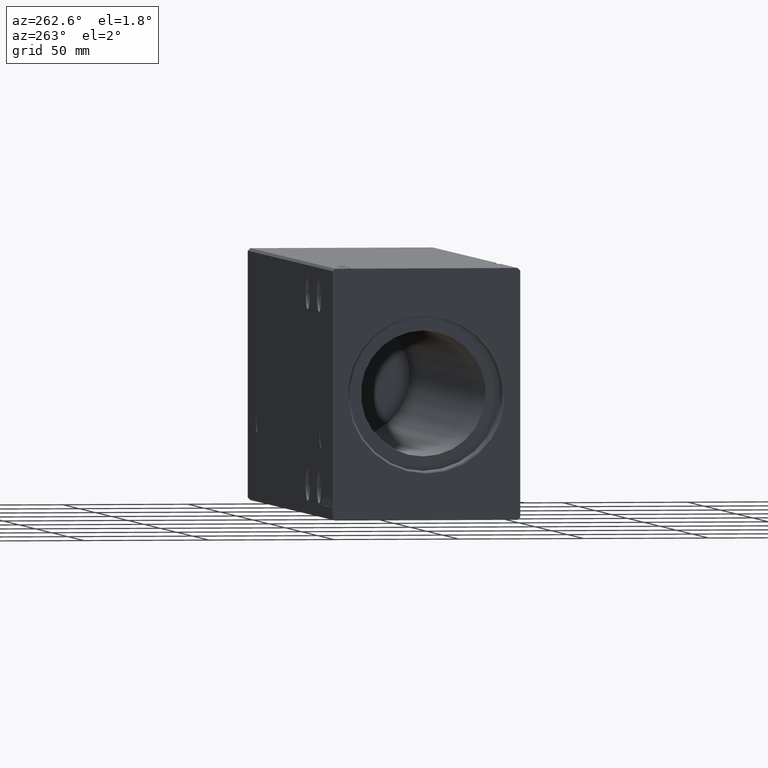
[diagram: clean part render]
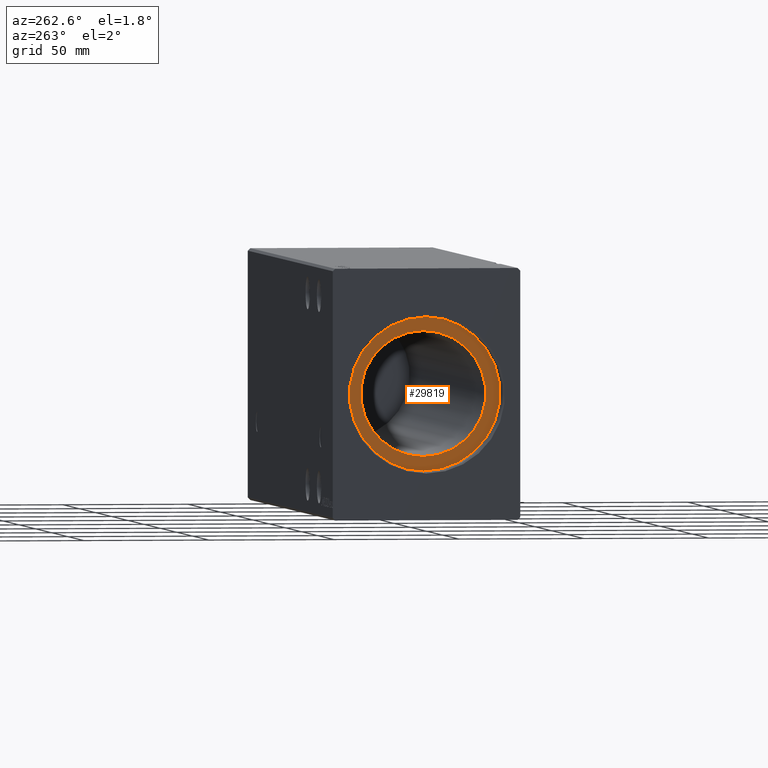
[diagram: same view with one face highlighted and labeled with its STEP entity id]
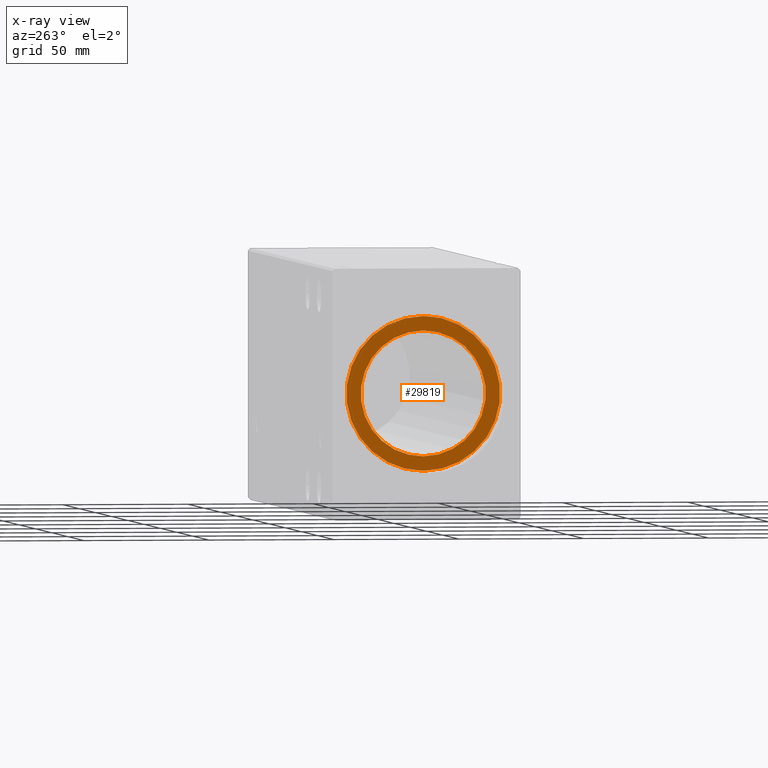
[diagram: x-ray of the same camera — body ghosted, the highlighted face saturated]
A machine part, auxiliary view. The second image highlights one B-rep face of the part: STEP entity #29819.
The next image is the same camera in x-ray: the body ghosted, the highlighted face saturated — about 0% of this face is hidden behind the body in this view.
In plain terms, the highlighted planar face has unit normal (-1, 0, 0).
Its self-contained STEP definition (entity closure, byte-faithful):
#1097 = DIRECTION ( 'NONE',  ( -1.000000000000000000, 0.000000000000000000, 0.000000000000000000 ) ) ;
#1128 = EDGE_CURVE ( 'NONE', #8531, #28750, #25035, .T. ) ;
#1332 = CIRCLE ( 'NONE', #12202, 25.00000000000000000 ) ;
#1395 = ORIENTED_EDGE ( 'NONE', *, *, #30951, .T. ) ;
#3471 = EDGE_CURVE ( 'NONE', #28750, #8531, #1332, .T. ) ;
#4555 = ORIENTED_EDGE ( 'NONE', *, *, #1128, .F. ) ;
#6062 = CARTESIAN_POINT ( 'NONE',  ( 10.00000000000000000, 3.765788907378111328E-15, -30.75000000000000355 ) ) ;
#7040 = CIRCLE ( 'NONE', #35502, 30.75000000000000355 ) ;
#7109 = CARTESIAN_POINT ( 'NONE',  ( 10.00000000000000000, 0.000000000000000000, 0.000000000000000000 ) ) ;
#7868 = CIRCLE ( 'NONE', #24142, 30.75000000000000355 ) ;
#8531 = VERTEX_POINT ( 'NONE', #35572 ) ;
#8713 = DIRECTION ( 'NONE',  ( 0.000000000000000000, 0.000000000000000000, 1.000000000000000000 ) ) ;
#10462 = EDGE_LOOP ( 'NONE', ( #22302, #4555 ) ) ;
#10553 = VERTEX_POINT ( 'NONE', #36429 ) ;
#12202 = AXIS2_PLACEMENT_3D ( 'NONE', #19804, #1097, #20420 ) ;
#14294 = EDGE_CURVE ( 'NONE', #10553, #16656, #7040, .T. ) ;
#16168 = CARTESIAN_POINT ( 'NONE',  ( 10.00000000000000888, 0.000000000000000000, 0.000000000000000000 ) ) ;
#16656 = VERTEX_POINT ( 'NONE', #6062 ) ;
#17373 = EDGE_LOOP ( 'NONE', ( #23197, #1395 ) ) ;
#18270 = AXIS2_PLACEMENT_3D ( 'NONE', #16168, #25911, #35490 ) ;
#18276 = CARTESIAN_POINT ( 'NONE',  ( 10.00000000000000000, 0.000000000000000000, 0.000000000000000000 ) ) ;
#19804 = CARTESIAN_POINT ( 'NONE',  ( 10.00000000000000888, 0.000000000000000000, 0.000000000000000000 ) ) ;
#20065 = DIRECTION ( 'NONE',  ( 0.000000000000000000, 0.000000000000000000, 1.000000000000000000 ) ) ;
#20420 = DIRECTION ( 'NONE',  ( 0.000000000000000000, 0.000000000000000000, 1.000000000000000000 ) ) ;
#20862 = DIRECTION ( 'NONE',  ( 0.000000000000000000, 0.000000000000000000, 1.000000000000000000 ) ) ;
#22302 = ORIENTED_EDGE ( 'NONE', *, *, #3471, .F. ) ;
#23197 = ORIENTED_EDGE ( 'NONE', *, *, #14294, .T. ) ;
#23816 = PLANE ( 'NONE',  #25501 ) ;
#24142 = AXIS2_PLACEMENT_3D ( 'NONE', #18276, #41224, #8713 ) ;
#25035 = CIRCLE ( 'NONE', #18270, 25.00000000000000000 ) ;
#25501 = AXIS2_PLACEMENT_3D ( 'NONE', #27221, #40200, #20862 ) ;
#25911 = DIRECTION ( 'NONE',  ( -1.000000000000000000, 0.000000000000000000, 0.000000000000000000 ) ) ;
#27221 = CARTESIAN_POINT ( 'NONE',  ( 10.00000000000000000, 0.000000000000000000, 0.000000000000000000 ) ) ;
#28750 = VERTEX_POINT ( 'NONE', #36493 ) ;
#29819 = ADVANCED_FACE ( 'NONE', ( #33388, #36594 ), #23816, .T. ) ;
#30951 = EDGE_CURVE ( 'NONE', #16656, #10553, #7868, .T. ) ;
#32796 = DIRECTION ( 'NONE',  ( -1.000000000000000000, 0.000000000000000000, 0.000000000000000000 ) ) ;
#33388 = FACE_BOUND ( 'NONE', #10462, .T. ) ;
#35490 = DIRECTION ( 'NONE',  ( 0.000000000000000000, 0.000000000000000000, 1.000000000000000000 ) ) ;
#35502 = AXIS2_PLACEMENT_3D ( 'NONE', #7109, #32796, #20065 ) ;
#35572 = CARTESIAN_POINT ( 'NONE',  ( 10.00000000000000888, 3.061616997868382254E-15, -25.00000000000000000 ) ) ;
#36429 = CARTESIAN_POINT ( 'NONE',  ( 10.00000000000000000, 0.000000000000000000, 30.75000000000000355 ) ) ;
#36493 = CARTESIAN_POINT ( 'NONE',  ( 10.00000000000000888, 0.000000000000000000, 25.00000000000000000 ) ) ;
#36594 = FACE_OUTER_BOUND ( 'NONE', #17373, .T. ) ;
#40200 = DIRECTION ( 'NONE',  ( -1.000000000000000000, 0.000000000000000000, 0.000000000000000000 ) ) ;
#41224 = DIRECTION ( 'NONE',  ( -1.000000000000000000, 0.000000000000000000, 0.000000000000000000 ) ) ;